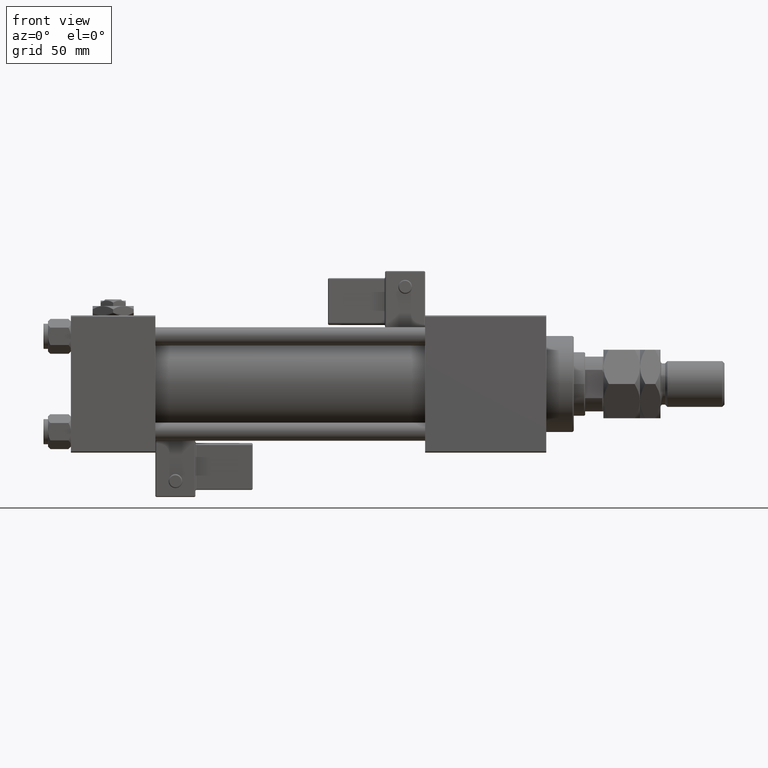
[diagram: clean part render]
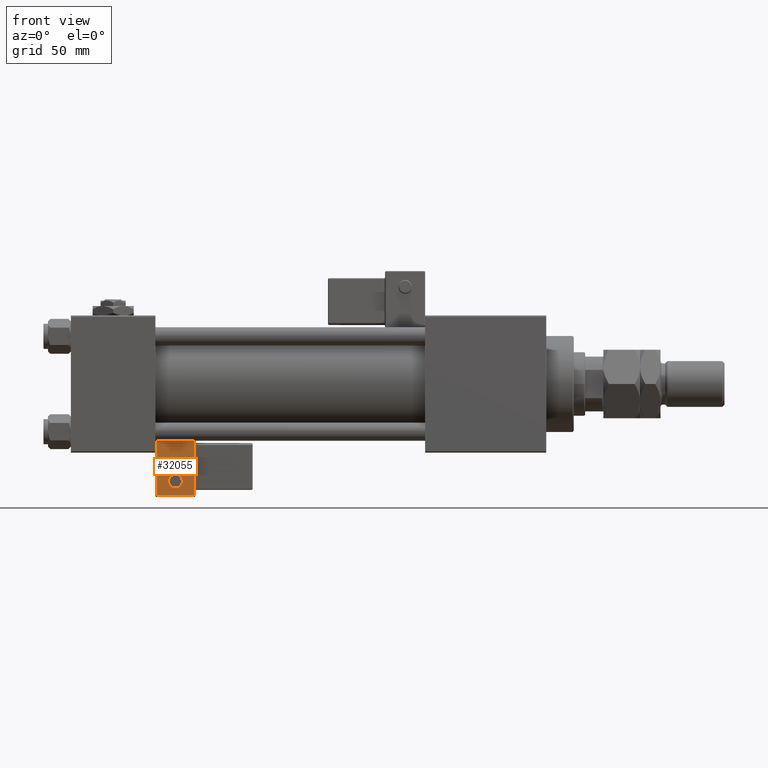
[diagram: same view with one face highlighted and labeled with its STEP entity id]
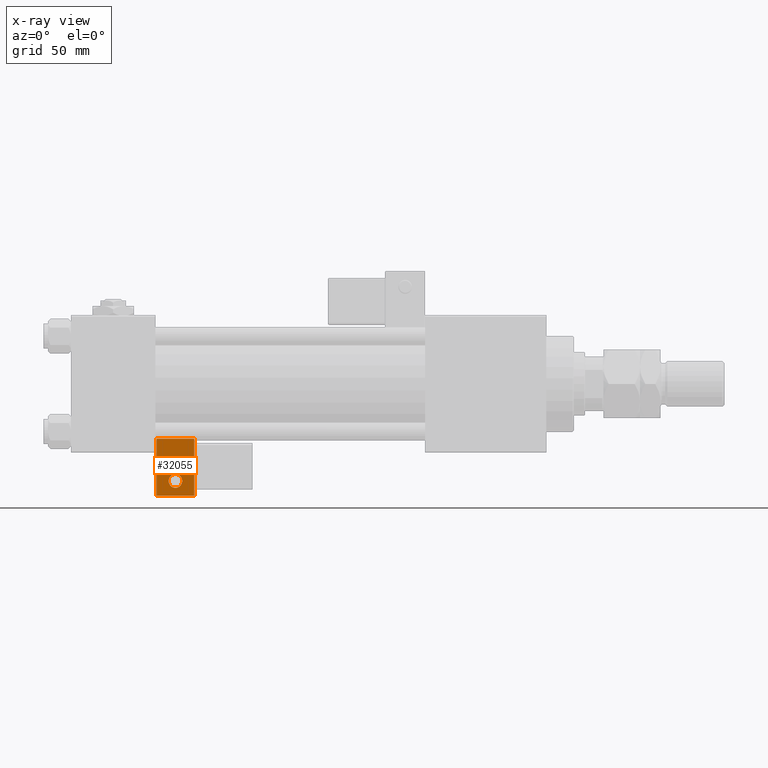
[diagram: x-ray of the same camera — body ghosted, the highlighted face saturated]
A machine part, front view. The second image highlights one B-rep face of the part: STEP entity #32055.
The next image is the same camera in x-ray: the body ghosted, the highlighted face saturated — about 0% of this face is hidden behind the body in this view.
In plain terms, the highlighted planar face has unit normal (0, 0.9994, 0.0353).
Its self-contained STEP definition (entity closure, byte-faithful):
#956 = DIRECTION ( 'NONE',  ( -1.334402673828313339E-16, 0.000000000000000000, 1.000000000000000000 ) ) ;
#1793 = AXIS2_PLACEMENT_3D ( 'NONE', #14273, #37084, #41859 ) ;
#1807 = CARTESIAN_POINT ( 'NONE',  ( 8.250000000000003553, -35.75000000000000000, 1.100882205908358986E-15 ) ) ;
#2278 = DIRECTION ( 'NONE',  ( -1.000000000000000000, 0.000000000000000000, 1.982541115402065110E-16 ) ) ;
#2824 = EDGE_CURVE ( 'NONE', #46039, #30337, #49691, .T. ) ;
#2945 = DIRECTION ( 'NONE',  ( -0.000000000000000000, -1.000000000000000000, -0.000000000000000000 ) ) ;
#7759 = EDGE_CURVE ( 'NONE', #39859, #9865, #13889, .T. ) ;
#8410 = LINE ( 'NONE', #25645, #9471 ) ;
#8627 = CARTESIAN_POINT ( 'NONE',  ( 0.000000000000000000, -35.75000000000000000, 0.000000000000000000 ) ) ;
#9471 = VECTOR ( 'NONE', #39167, 1000.000000000000000 ) ;
#9865 = VERTEX_POINT ( 'NONE', #49187 ) ;
#10653 = CARTESIAN_POINT ( 'NONE',  ( -4.336808689942017736E-16, -35.75000000000000000, 9.000000000000001776 ) ) ;
#11122 = DIRECTION ( 'NONE',  ( 0.000000000000000000, 0.000000000000000000, 1.000000000000000000 ) ) ;
#12093 = LINE ( 'NONE', #32463, #45819 ) ;
#13599 = VECTOR ( 'NONE', #956, 1000.000000000000000 ) ;
#13889 = LINE ( 'NONE', #39584, #35460 ) ;
#14273 = CARTESIAN_POINT ( 'NONE',  ( -4.336808689942017736E-16, -35.75000000000000000, 6.000000000000001776 ) ) ;
#14762 = EDGE_CURVE ( 'NONE', #55425, #39859, #8410, .T. ) ;
#15182 = CARTESIAN_POINT ( 'NONE',  ( -8.250000000000003553, -35.75000000000000000, -0.5000000000000002220 ) ) ;
#16536 = DIRECTION ( 'NONE',  ( 0.000000000000000000, -0.000000000000000000, 1.000000000000000000 ) ) ;
#16814 = FACE_BOUND ( 'NONE', #16882, .T. ) ;
#16882 = EDGE_LOOP ( 'NONE', ( #21329, #45213 ) ) ;
#19576 = EDGE_CURVE ( 'NONE', #30337, #46039, #42361, .T. ) ;
#21055 = PLANE ( 'NONE',  #35524 ) ;
#21329 = ORIENTED_EDGE ( 'NONE', *, *, #19576, .F. ) ;
#23786 = ORIENTED_EDGE ( 'NONE', *, *, #53589, .T. ) ;
#24862 = EDGE_CURVE ( 'NONE', #9865, #40633, #39904, .T. ) ;
#25103 = CARTESIAN_POINT ( 'NONE',  ( -6.628682924999581145E-17, -35.75000000000000000, 3.000000000000001776 ) ) ;
#25645 = CARTESIAN_POINT ( 'NONE',  ( -8.250000000000003553, -35.75000000000000000, 1.100882205908358788E-15 ) ) ;
#28322 = ORIENTED_EDGE ( 'NONE', *, *, #24862, .T. ) ;
#30337 = VERTEX_POINT ( 'NONE', #10653 ) ;
#32055 = ADVANCED_FACE ( 'NONE', ( #54636, #16814 ), #21055, .F. ) ;
#32463 = CARTESIAN_POINT ( 'NONE',  ( 4.857225732735059864E-15, -35.75000000000000000, 24.50000000000000000 ) ) ;
#33606 = EDGE_LOOP ( 'NONE', ( #23786, #49009, #53439, #28322 ) ) ;
#35033 = CARTESIAN_POINT ( 'NONE',  ( 8.250000000000000000, -35.75000000000000000, 24.50000000000000000 ) ) ;
#35460 = VECTOR ( 'NONE', #47492, 1000.000000000000000 ) ;
#35524 = AXIS2_PLACEMENT_3D ( 'NONE', #8627, #47287, #16536 ) ;
#37060 = AXIS2_PLACEMENT_3D ( 'NONE', #40765, #2945, #11122 ) ;
#37084 = DIRECTION ( 'NONE',  ( -0.000000000000000000, -1.000000000000000000, -0.000000000000000000 ) ) ;
#39167 = DIRECTION ( 'NONE',  ( -1.334402673828313093E-16, 0.000000000000000000, -1.000000000000000000 ) ) ;
#39584 = CARTESIAN_POINT ( 'NONE',  ( 0.000000000000000000, -35.75000000000000000, -0.5000000000000002220 ) ) ;
#39859 = VERTEX_POINT ( 'NONE', #15182 ) ;
#39904 = LINE ( 'NONE', #1807, #13599 ) ;
#40450 = CARTESIAN_POINT ( 'NONE',  ( -8.250000000000000000, -35.75000000000000000, 24.50000000000000355 ) ) ;
#40633 = VERTEX_POINT ( 'NONE', #35033 ) ;
#40765 = CARTESIAN_POINT ( 'NONE',  ( -4.336808689942017736E-16, -35.75000000000000000, 6.000000000000001776 ) ) ;
#41859 = DIRECTION ( 'NONE',  ( 0.000000000000000000, 0.000000000000000000, 1.000000000000000000 ) ) ;
#42361 = CIRCLE ( 'NONE', #1793, 2.999999999999999112 ) ;
#45213 = ORIENTED_EDGE ( 'NONE', *, *, #2824, .F. ) ;
#45819 = VECTOR ( 'NONE', #2278, 1000.000000000000000 ) ;
#46039 = VERTEX_POINT ( 'NONE', #25103 ) ;
#47287 = DIRECTION ( 'NONE',  ( 0.000000000000000000, 1.000000000000000000, 0.000000000000000000 ) ) ;
#47492 = DIRECTION ( 'NONE',  ( 1.000000000000000000, 0.000000000000000000, 0.000000000000000000 ) ) ;
#49009 = ORIENTED_EDGE ( 'NONE', *, *, #14762, .T. ) ;
#49187 = CARTESIAN_POINT ( 'NONE',  ( 8.250000000000003553, -35.75000000000000000, -0.5000000000000002220 ) ) ;
#49691 = CIRCLE ( 'NONE', #37060, 2.999999999999999112 ) ;
#53439 = ORIENTED_EDGE ( 'NONE', *, *, #7759, .T. ) ;
#53589 = EDGE_CURVE ( 'NONE', #40633, #55425, #12093, .T. ) ;
#54636 = FACE_OUTER_BOUND ( 'NONE', #33606, .T. ) ;
#55425 = VERTEX_POINT ( 'NONE', #40450 ) ;